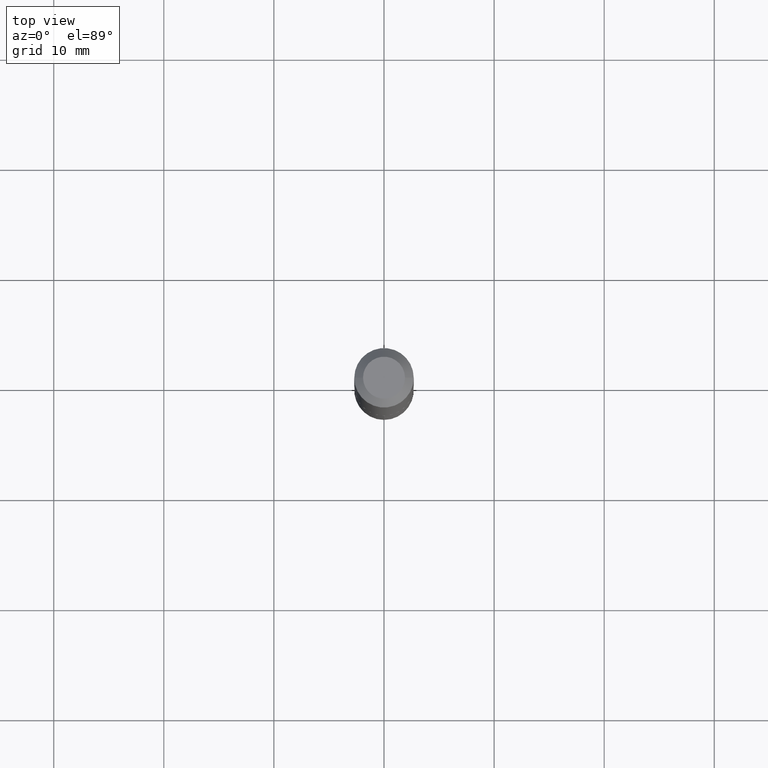
[diagram: clean part render]
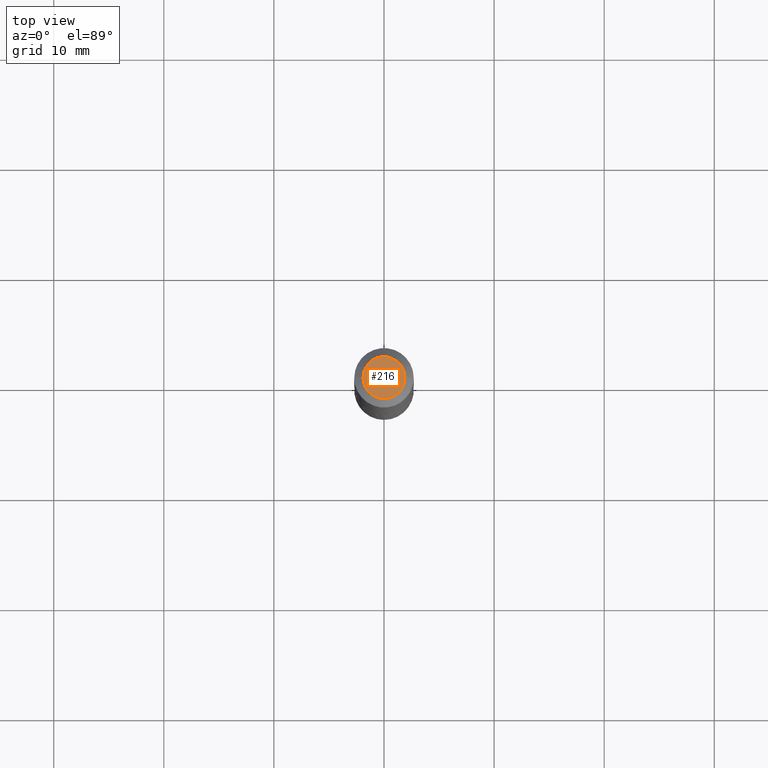
[diagram: same view with one face highlighted and labeled with its STEP entity id]
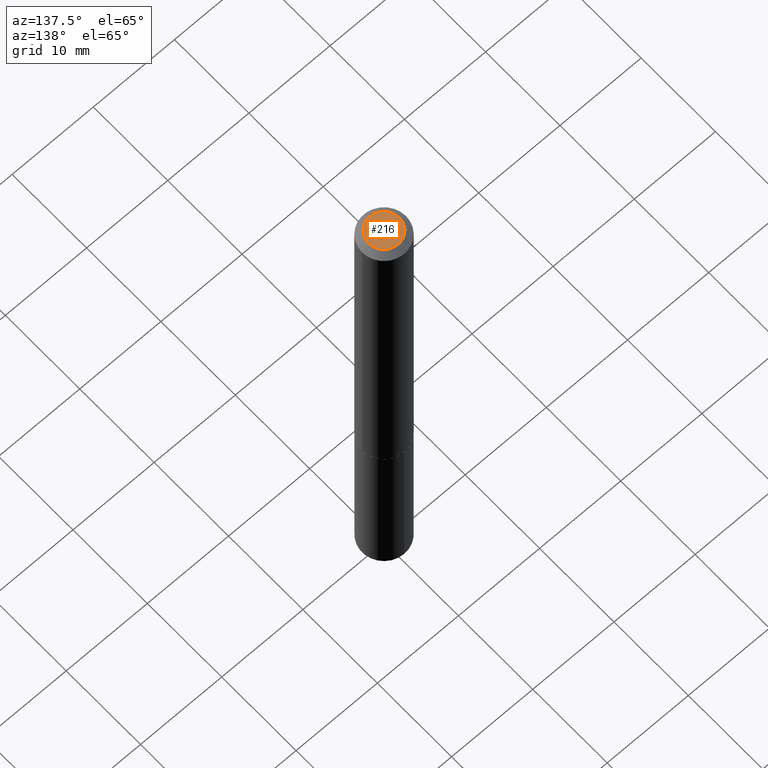
[diagram: same view with one face highlighted and labeled with its STEP entity id]
A machine part, top view. The second image highlights one B-rep face of the part: STEP entity #216.
A second angle (auxiliary view) of the same face is appended — the face is thin or edge-on in the first view.
In plain terms, the highlighted planar face has unit normal (0, -0, -1).
Its self-contained STEP definition (entity closure, byte-faithful):
#15 = ORIENTED_EDGE ( 'NONE', *, *, #269, .T. ) ;
#20 = PLANE ( 'NONE',  #230 ) ;
#21 = CARTESIAN_POINT ( 'NONE',  ( -5.839929314523221596E-48, 8.337871319499147471E-34, 2.388061258337352918E-19 ) ) ;
#31 = ORIENTED_EDGE ( 'NONE', *, *, #319, .T. ) ;
#58 = FACE_OUTER_BOUND ( 'NONE', #364, .T. ) ;
#65 = AXIS2_PLACEMENT_3D ( 'NONE', #288, #108, #223 ) ;
#81 = DIRECTION ( 'NONE',  ( -2.445468806185136597E-29, 3.491481338843145583E-15, 1.000000000000000000 ) ) ;
#105 = DIRECTION ( 'NONE',  ( 2.438088387897960049E-29, -3.491481338843145188E-15, -1.000000000000000000 ) ) ;
#108 = DIRECTION ( 'NONE',  ( -2.445468806185136597E-29, 3.491481338843145583E-15, 1.000000000000000000 ) ) ;
#131 = VERTEX_POINT ( 'NONE', #213 ) ;
#141 = DIRECTION ( 'NONE',  ( 1.000000000000000000, -6.982962677686265922E-15, 4.876182450887181548E-29 ) ) ;
#148 = AXIS2_PLACEMENT_3D ( 'NONE', #21, #81, #141 ) ;
#195 = DIRECTION ( 'NONE',  ( -1.000000000000000000, 6.982962677686265922E-15, -4.876176775795935793E-29 ) ) ;
#213 = CARTESIAN_POINT ( 'NONE',  ( -0.07505000000000001947, 5.786257448797778683E-16, 2.388061258298797245E-19 ) ) ;
#216 = ADVANCED_FACE ( 'NONE', ( #58 ), #20, .F. ) ;
#217 = CIRCLE ( 'NONE', #65, 0.07505000000000000560 ) ;
#223 = DIRECTION ( 'NONE',  ( 1.000000000000000000, -6.982962677686265922E-15, 4.876182450887181548E-29 ) ) ;
#230 = AXIS2_PLACEMENT_3D ( 'NONE', #314, #105, #195 ) ;
#255 = CARTESIAN_POINT ( 'NONE',  ( 0.07505000000000001947, -6.766300518673582083E-16, 2.388061258379330487E-19 ) ) ;
#269 = EDGE_CURVE ( 'NONE', #131, #324, #217, .T. ) ;
#288 = CARTESIAN_POINT ( 'NONE',  ( -5.839929314523221596E-48, 8.337871319499147471E-34, 2.388061258337352918E-19 ) ) ;
#308 = CIRCLE ( 'NONE', #148, 0.07505000000000000560 ) ;
#314 = CARTESIAN_POINT ( 'NONE',  ( -2.919964657261610798E-48, 4.168935659749573735E-34, 1.194030629168676459E-19 ) ) ;
#319 = EDGE_CURVE ( 'NONE', #324, #131, #308, .T. ) ;
#324 = VERTEX_POINT ( 'NONE', #255 ) ;
#364 = EDGE_LOOP ( 'NONE', ( #15, #31 ) ) ;